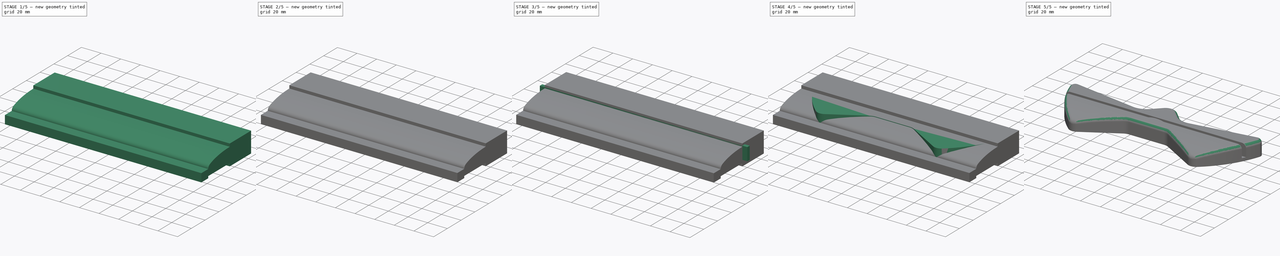
[diagram: build sequence overview — one tinted view per stage of 5, left to right]
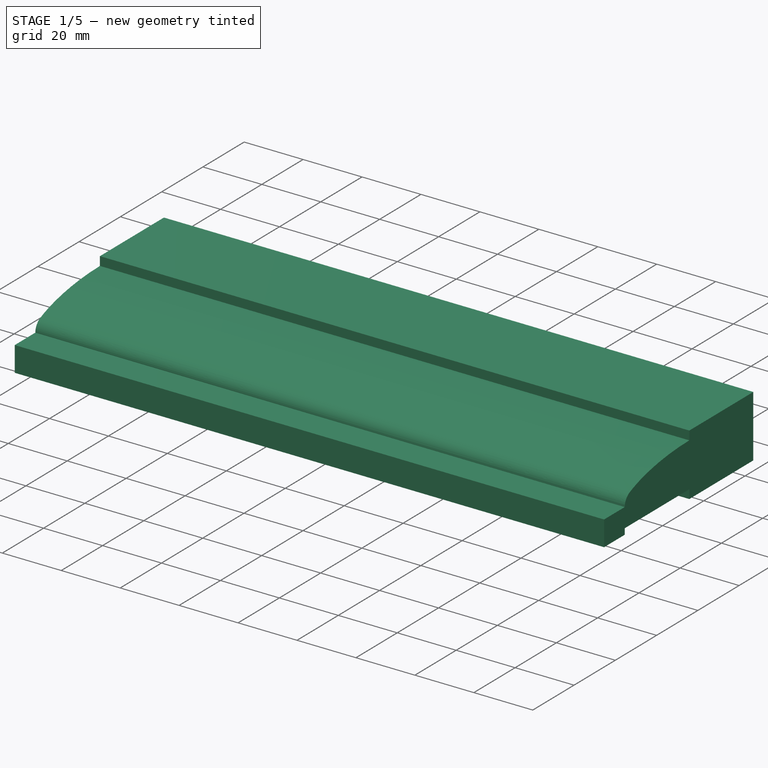
[diagram: stage 1 of 5 — iso view after this stage's code; geometry added in this stage tinted green]
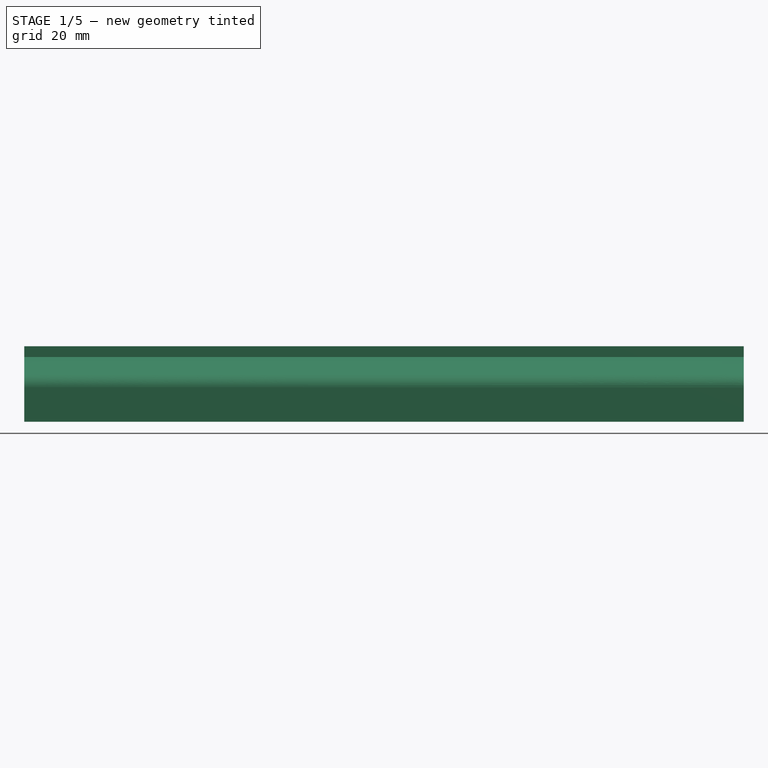
[diagram: stage 1 of 5 — front view after this stage's code; geometry added in this stage tinted green]
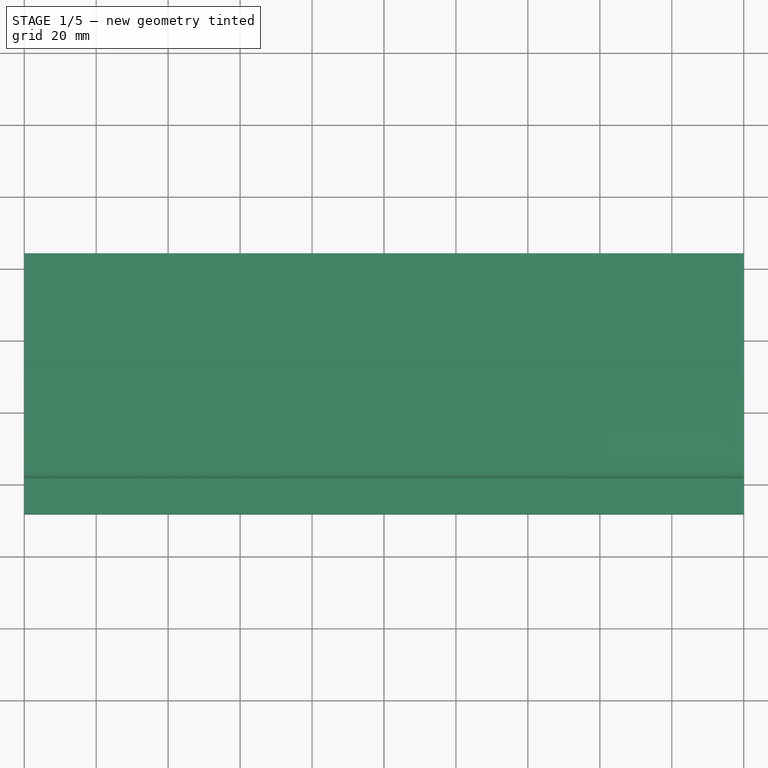
[diagram: stage 1 of 5 — top view after this stage's code; geometry added in this stage tinted green]
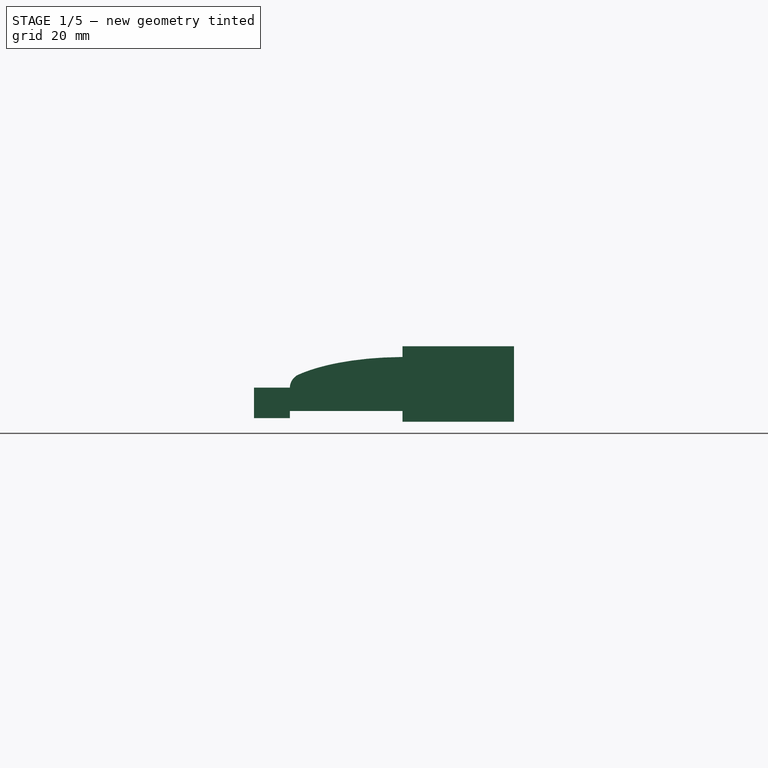
[diagram: stage 1 of 5 — right view after this stage's code; geometry added in this stage tinted green]
FCSTD DOCUMENT
Label: pattern-holder
objects: Sketcher::SketchObject×7, Part::Extrusion×6, Part::Cut×4, Part::MultiFuse×3, Part::Feature×2, PartDesign::Pad×2, Part::Box×2, Part::MultiCommon×1, Part::Fillet×1
note: 30 computed .brp shape members not serialized (recipe doc carries the construction recipe); baked Part::Feature solids carry a one-line shape summary decoded from their .brp

FEATURE [Part::Feature] Part__Feature_cs  label="Perfil curvo"
  Placement = pos=(-44,0,0) rot=(0,0,1;0rad)
  shape: bbox 1e-05 x 48.61 x 15 mm, 0 faces, 0 solids (baked)
FEATURE [Part::Extrusion] Extrude005
  Base = -> Part__Feature_cs
  Dir = (200,0,0)
  Placement = pos=(4,0,0) rot=(0,0,1;0rad)
  Solid = true
FEATURE [Part::Box] Box001  label="Cubo001"
  Height = 21
  Length = 200
  Placement = pos=(-100,-47,-3) rot=(0,0,1;0rad)
  Width = 31
FEATURE [Part::Box] Box002  label="Cubo002"
  Height = 8.5
  Length = 200
  Placement = pos=(-100,-88.3,-2) rot=(0,0,1;0rad)
  Width = 10
FEATURE [Part::MultiFuse] Fusion002  label="Para curvar la pieza"
  Shapes = -> [Extrude005,Box001,Box002]
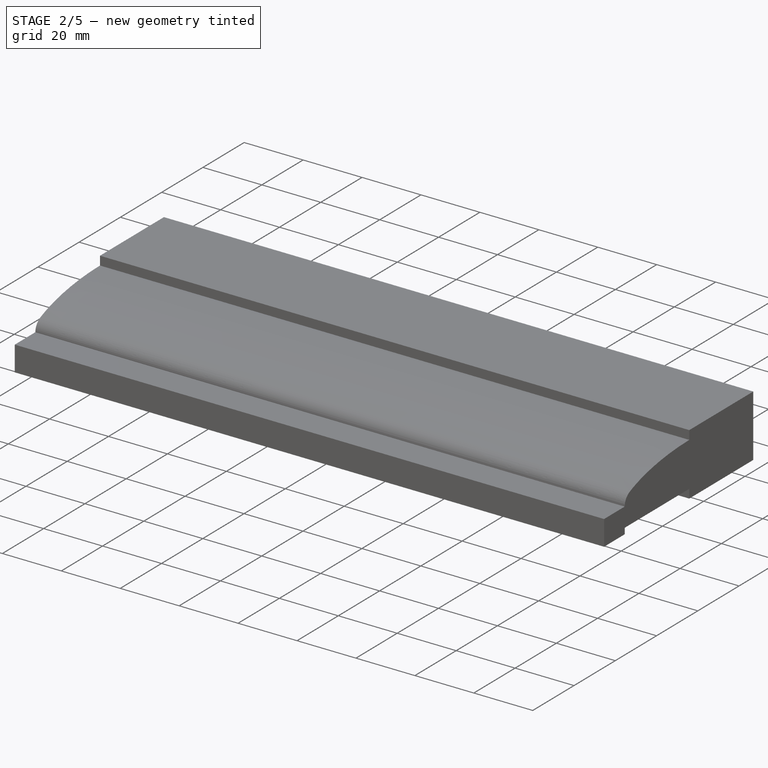
[diagram: stage 2 of 5 — iso view after this stage's code; geometry added in this stage tinted green]
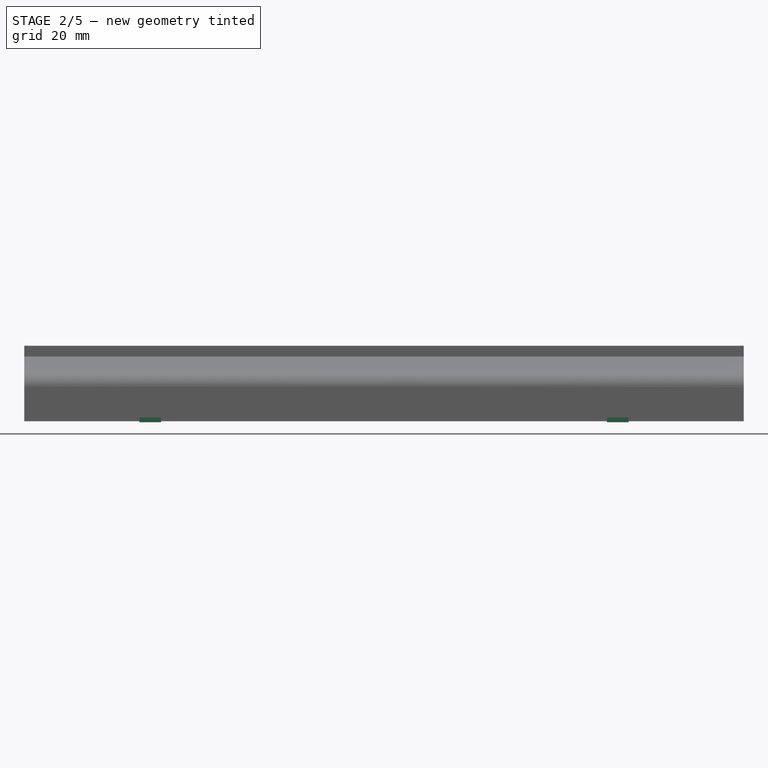
[diagram: stage 2 of 5 — front view after this stage's code; geometry added in this stage tinted green]
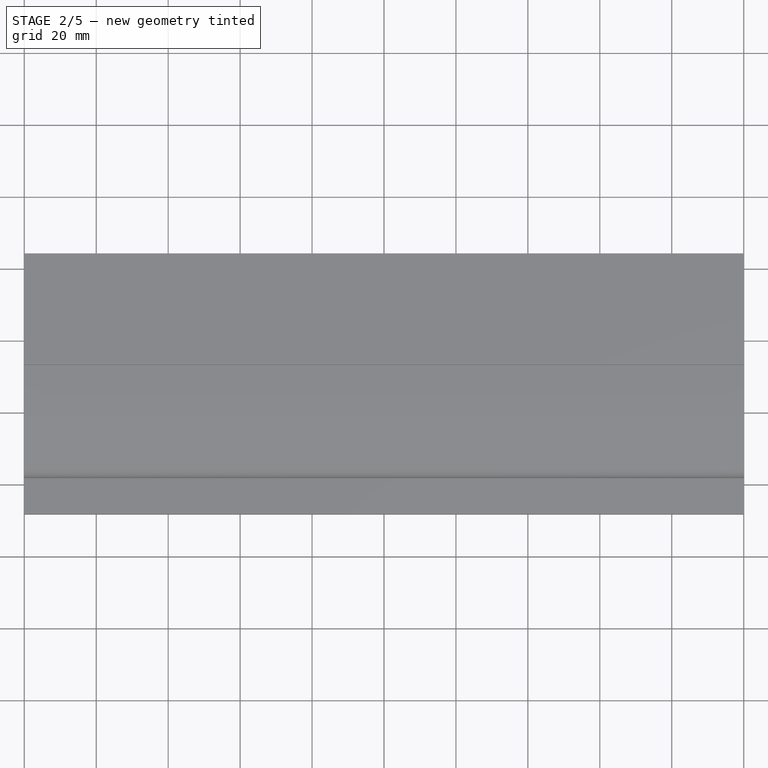
[diagram: stage 2 of 5 — top view after this stage's code; geometry added in this stage tinted green]
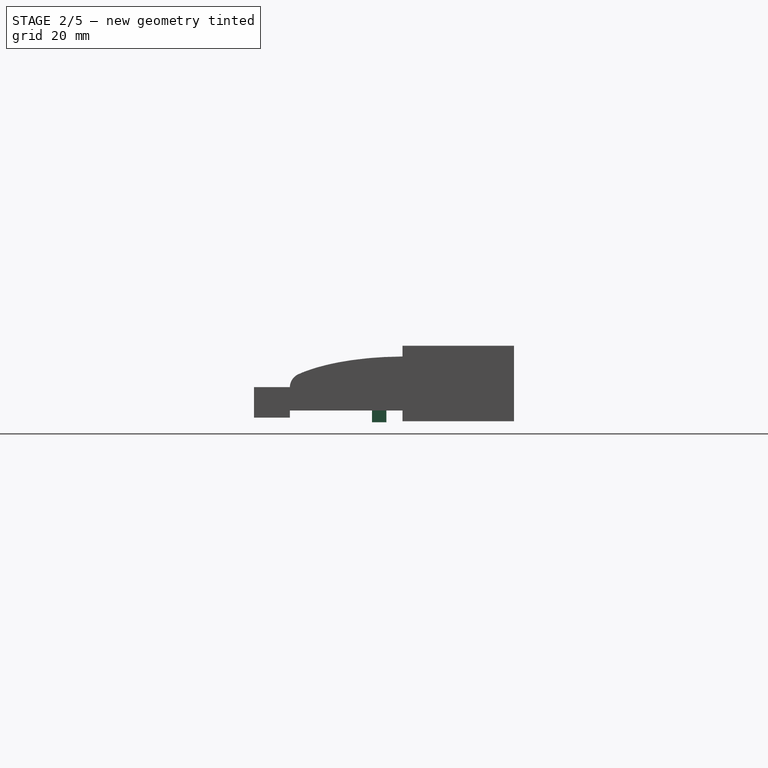
[diagram: stage 2 of 5 — right view after this stage's code; geometry added in this stage tinted green]
FEATURE [Sketcher::SketchObject] Sketch003  label="Sketch M3"
  Placement = pos=(65,-55.5,11.46) rot=(-1,0,0;1.5708rad)
  sketch-geometry (6):
    g0: LineSegment StartX=-3 StartY=14.7321 StartZ=0 EndX=-3 EndY=1.73205 EndZ=0
    g1: LineSegment StartX=-3 StartY=1.73205 StartZ=0 EndX=0 EndY=0 EndZ=0
    g2: LineSegment StartX=0 StartY=0 StartZ=0 EndX=3 EndY=1.73205 EndZ=0
    g3: LineSegment StartX=3 StartY=1.73205 StartZ=0 EndX=3 EndY=14.7321 EndZ=0
    g4: LineSegment StartX=3 StartY=14.7321 StartZ=0 EndX=-3 EndY=14.7321 EndZ=0
    g5: LineSegment [constr] StartX=0 StartY=0 StartZ=0 EndX=0 EndY=14.7321 EndZ=0
  constraints (17):
    c: Vertical(g0)
    c: Coincident(g0,g1)
    c: Coincident(g1,g2)
    c: Coincident(g2,g3)
    c: Vertical(g3)
    c: Coincident(g3,g4)
    c: Coincident(g4,g0)
    c: Horizontal(g4)
    c: Coincident(g5,g1)
    c: PointOnObject(g5,g4)
    c: Vertical(g5)
    c: Symmetric(g0,g2,g5)
    c: Angle(g2,g1) = 2.0944
    c: DistanceY(g3) = 13
    c: DistanceX(g4) = -6
    c: PointOnObject(g1,g-2)
    c: PointOnObject(g1,g-1)
FEATURE [PartDesign::Pad] Pad  label="Alojamiento tuerca M3"
  Length = 4
  Length2 = 100
  Placement = pos=(65,-55.5,11.46) rot=(-1,0,0;1.5708rad)
  Sketch = -> Sketch003
  Type = 0
FEATURE [Sketcher::SketchObject] Sketch005  label="Sketch M3_2"
  Placement = pos=(-65,-55.5,11.46) rot=(-1,0,0;1.5708rad)
  sketch-geometry (6):
    g0: LineSegment StartX=-3 StartY=14.7321 StartZ=0 EndX=-3 EndY=1.73205 EndZ=0
    g1: LineSegment StartX=-3 StartY=1.73205 StartZ=0 EndX=0 EndY=0 EndZ=0
    g2: LineSegment StartX=0 StartY=0 StartZ=0 EndX=3 EndY=1.73205 EndZ=0
    g3: LineSegment StartX=3 StartY=1.73205 StartZ=0 EndX=3 EndY=14.7321 EndZ=0
    g4: LineSegment StartX=3 StartY=14.7321 StartZ=0 EndX=-3 EndY=14.7321 EndZ=0
    g5: LineSegment [constr] StartX=0 StartY=0 StartZ=0 EndX=0 EndY=14.7321 EndZ=0
  constraints (17):
    c: Vertical(g0)
    c: Coincident(g0,g1)
    c: Coincident(g1,g2)
    c: Coincident(g2,g3)
    c: Vertical(g3)
    c: Coincident(g3,g4)
    c: Coincident(g4,g0)
    c: Horizontal(g4)
    c: Coincident(g5,g1)
    c: PointOnObject(g5,g4)
    c: Vertical(g5)
    c: Symmetric(g0,g2,g5)
    c: Angle(g2,g1) = 2.0944
    c: DistanceY(g3) = 13
    c: DistanceX(g4) = -6
    c: PointOnObject(g1,g-2)
    c: PointOnObject(g1,g-1)
FEATURE [PartDesign::Pad] Pad001  label="Alojamiento tuerca M3_2"
  Length = 4
  Length2 = 100
  Placement = pos=(-65,-55.5,11.46) rot=(-1,0,0;1.5708rad)
  Sketch = -> Sketch005
  Type = 0
FEATURE [Part::MultiFuse] Fusion  label="Alojamiento tuercas M3"
  Shapes = -> [Pad001,Pad]
FEATURE [Sketcher::SketchObject] Sketch006  label="Sketch arco"
  ExternalGeometry = -> [Part__Feature]
  Placement = pos=(0,-43.5,0) rot=(1,0,0;1.5708rad)
  Support = -> Part__Feature [Face3]
  sketch-geometry (2):
    g0: ArcOfCircle CenterX=0 CenterY=-16 CenterZ=0 NormalX=0 NormalY=0 NormalZ=1 Radius=30 StartAngle=0.685853 EndAngle=2.45574
    g1: LineSegment StartX=-23.2164 StartY=3 StartZ=0 EndX=23.2164 EndY=3 EndZ=0
  constraints (5):
    c: Coincident(g-3,g0)
    c: Coincident(g0,g-3)
    c: Coincident(g0,g-3)
    c: Coincident(g1,g0)
    c: Coincident(g1,g0)
FEATURE [Part::Extrusion] Extrude004  label="Arco central"
  Base = -> Sketch006
  Dir = (0,-3.5,0)
  Solid = true
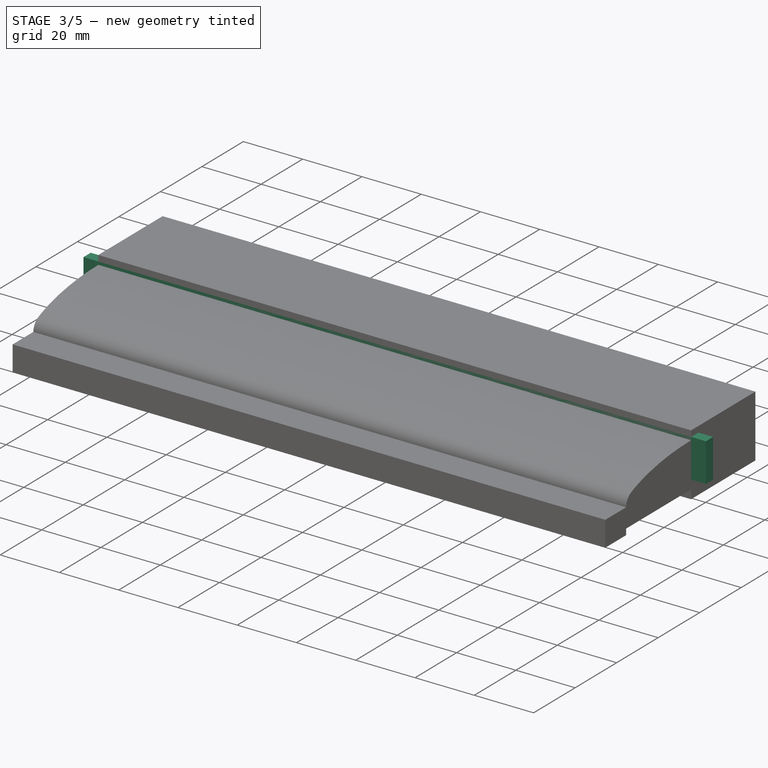
[diagram: stage 3 of 5 — iso view after this stage's code; geometry added in this stage tinted green]
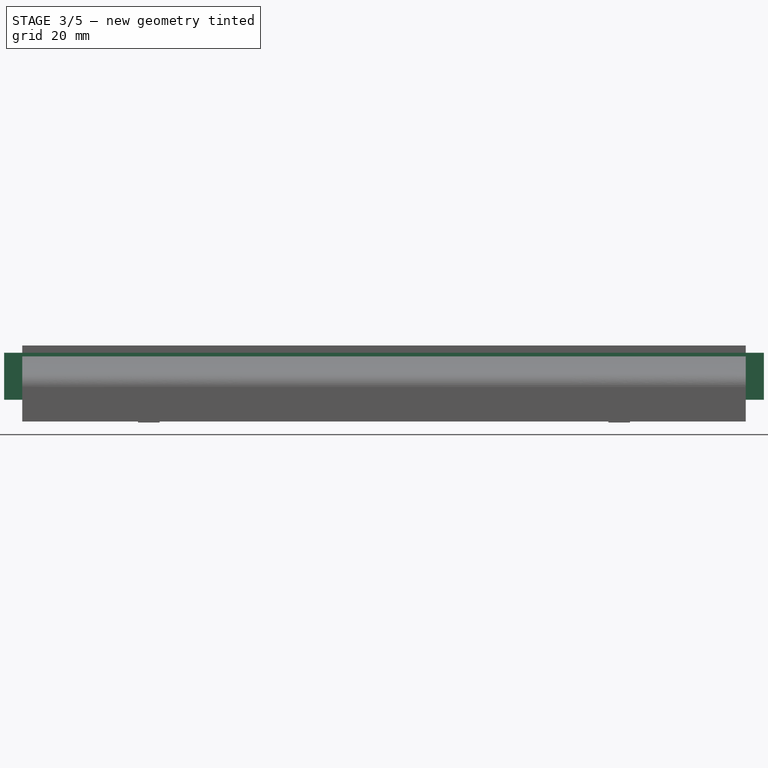
[diagram: stage 3 of 5 — front view after this stage's code; geometry added in this stage tinted green]
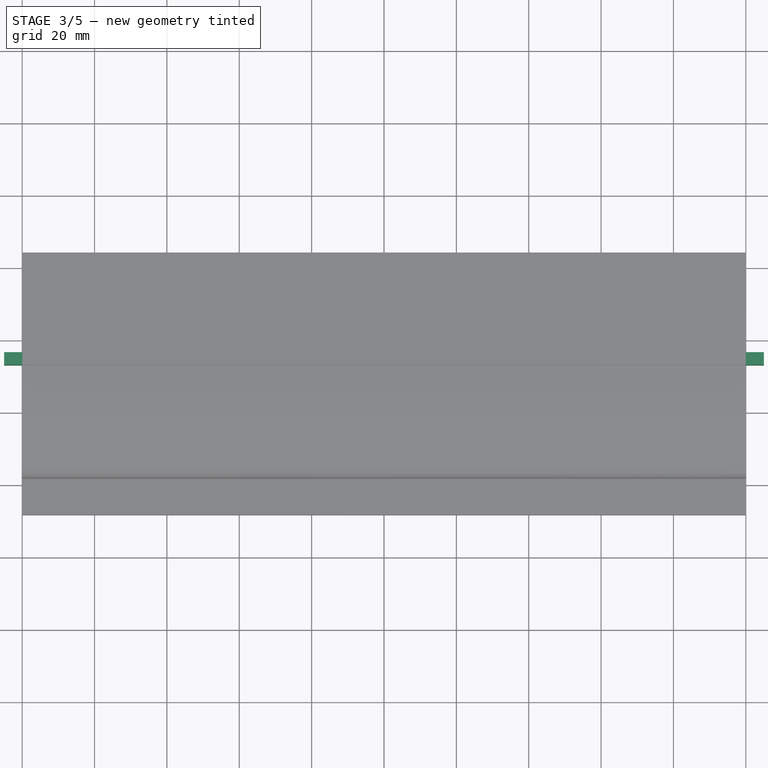
[diagram: stage 3 of 5 — top view after this stage's code; geometry added in this stage tinted green]
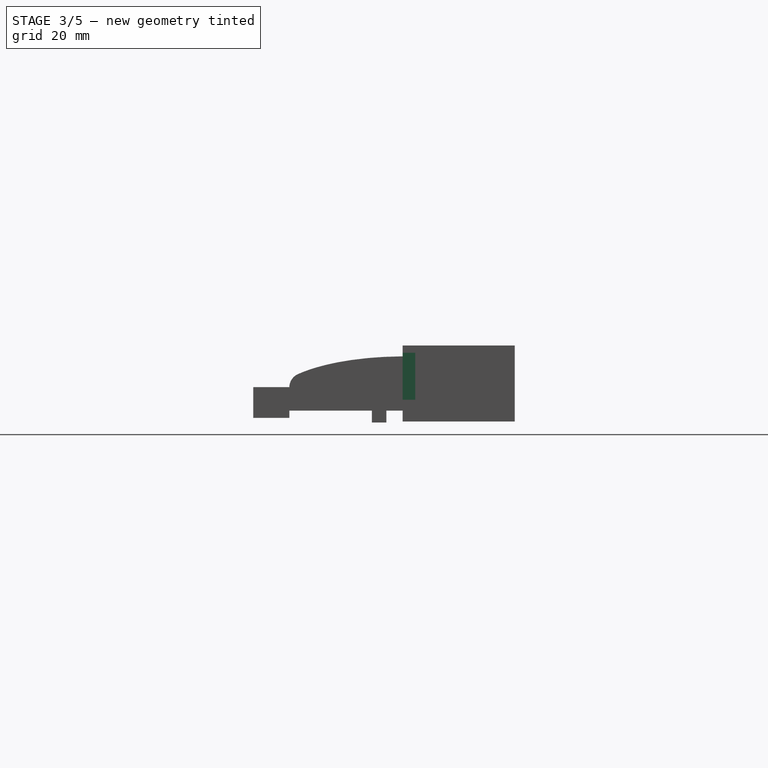
[diagram: stage 3 of 5 — right view after this stage's code; geometry added in this stage tinted green]
FEATURE [Sketcher::SketchObject] Sketch001  label="Sketch Ranura superior"
  ExternalGeometry = -> [Part__Feature]
  Placement = pos=(0,0,15) rot=(0,0,1;0rad)
  Support = -> Part__Feature [Face32]
  sketch-geometry (4):
    g0: LineSegment StartX=-105 StartY=-47 StartZ=0 EndX=105 EndY=-47 EndZ=0
    g1: LineSegment StartX=-105 StartY=-43.5 StartZ=0 EndX=105 EndY=-43.5 EndZ=0
    g2: LineSegment StartX=105 StartY=-43.5 StartZ=0 EndX=105 EndY=-47 EndZ=0
    g3: LineSegment StartX=-105 StartY=-47 StartZ=0 EndX=-105 EndY=-43.5 EndZ=0
  constraints (12):
    c: PointOnObject(g0,g-4)
    c: Horizontal(g0)
    c: PointOnObject(g1,g-3)
    c: Horizontal(g1)
    c: Vertical(g2)
    c: Coincident(g0,g2)
    c: Coincident(g1,g2)
    c: Coincident(g0,g3)
    c: Coincident(g3,g1)
    c: Vertical(g3)
    c: DistanceX(g0) = 210
    c: Symmetric(g0,g0,g-2)
FEATURE [Part::Extrusion] Extrude001  label="Ranura superior"
  Base = -> Sketch001
  Dir = (0,0,-13)
  Placement = pos=(0,0,1) rot=(0,0,1;0rad)
  Solid = true
FEATURE [Sketcher::SketchObject] Sketch002  label="Sketch 6mm"
  ExternalGeometry = -> [Part__Feature]
  Placement = pos=(0,-43.5,0) rot=(1,0,0;1.5708rad)
  Support = -> Part__Feature [Face3]
  sketch-geometry (2):
    g0: Circle CenterX=-65 CenterY=7.99996 CenterZ=0 NormalX=0 NormalY=0 NormalZ=1 Radius=3
    g1: Circle CenterX=65 CenterY=8 CenterZ=0 NormalX=0 NormalY=0 NormalZ=1 Radius=3
  constraints (4):
    c: Radius(g0) = 3
    c: Radius(g1) = 3
    c: DistanceX(g-3,g1) = 130
    c: Symmetric(g-3,g1,g-2)
FEATURE [Part::Extrusion] Extrude002  label="Taladro 6mm"
  Base = -> Sketch002
  Dir = (0,23,0)
  Solid = true
FEATURE [Sketcher::SketchObject] Sketch004  label="Sketch 3mm"
  ExternalGeometry = -> [Part__Feature]
  Placement = pos=(0,-47,0) rot=(0,0.707107,0.707107;3.14159rad)
  Support = -> Part__Feature [Face9]
  sketch-geometry (2):
    g0: Circle CenterX=64.9992 CenterY=8 CenterZ=0 NormalX=0 NormalY=0 NormalZ=1 Radius=1.75
    g1: Circle CenterX=-64.9992 CenterY=8 CenterZ=0 NormalX=0 NormalY=0 NormalZ=1 Radius=1.75
  constraints (4):
    c: Radius(g1) = 1.75
    c: Radius(g0) = 1.75
    c: DistanceY(g0) = 8
    c: Symmetric(g1,g0,g-2)
FEATURE [Part::Extrusion] Extrude003  label="Taladro 3mm"
  Base = -> Sketch004
  Dir = (0,-26.5,0)
  Solid = true
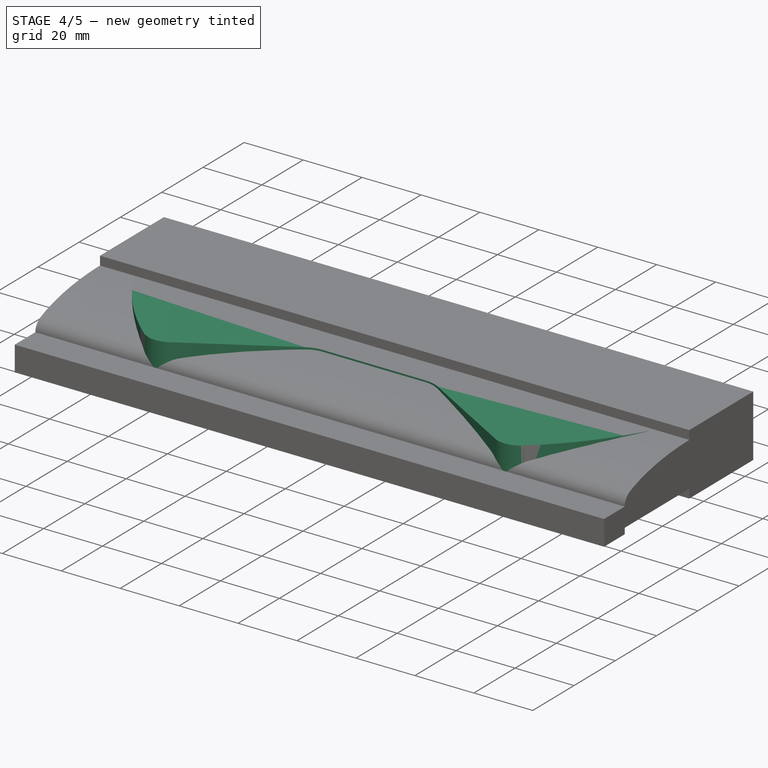
[diagram: stage 4 of 5 — iso view after this stage's code; geometry added in this stage tinted green]
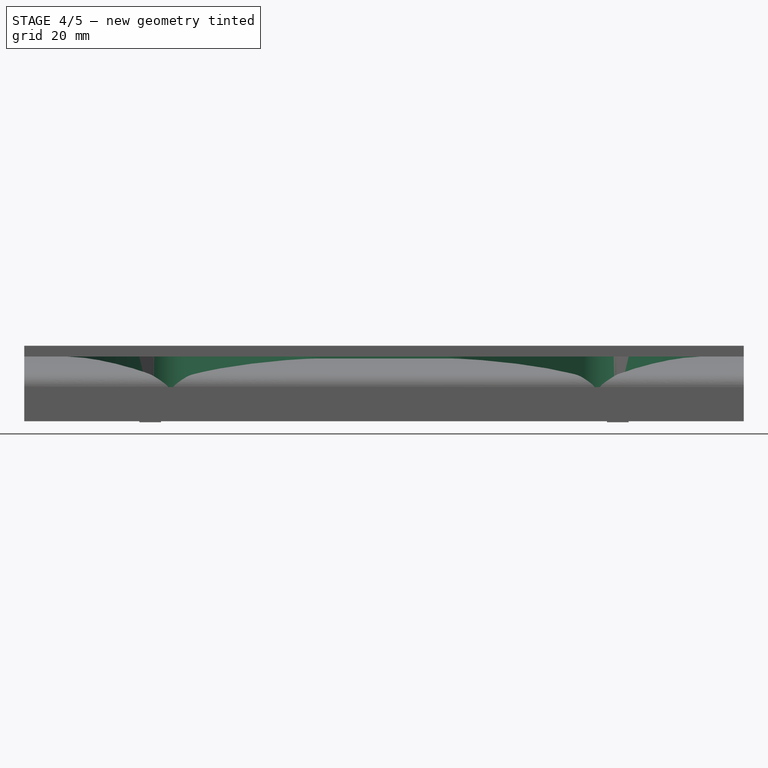
[diagram: stage 4 of 5 — front view after this stage's code; geometry added in this stage tinted green]
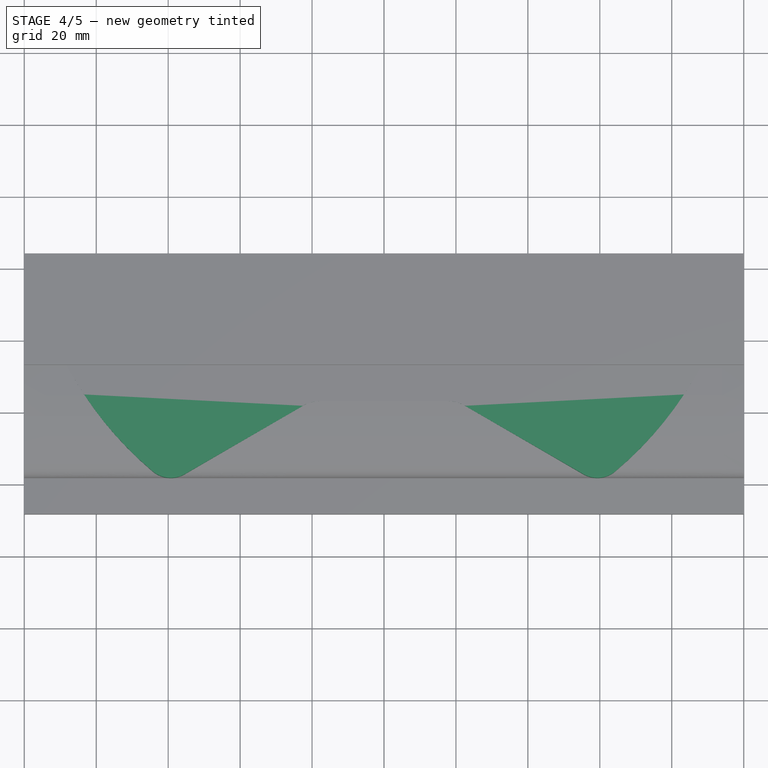
[diagram: stage 4 of 5 — top view after this stage's code; geometry added in this stage tinted green]
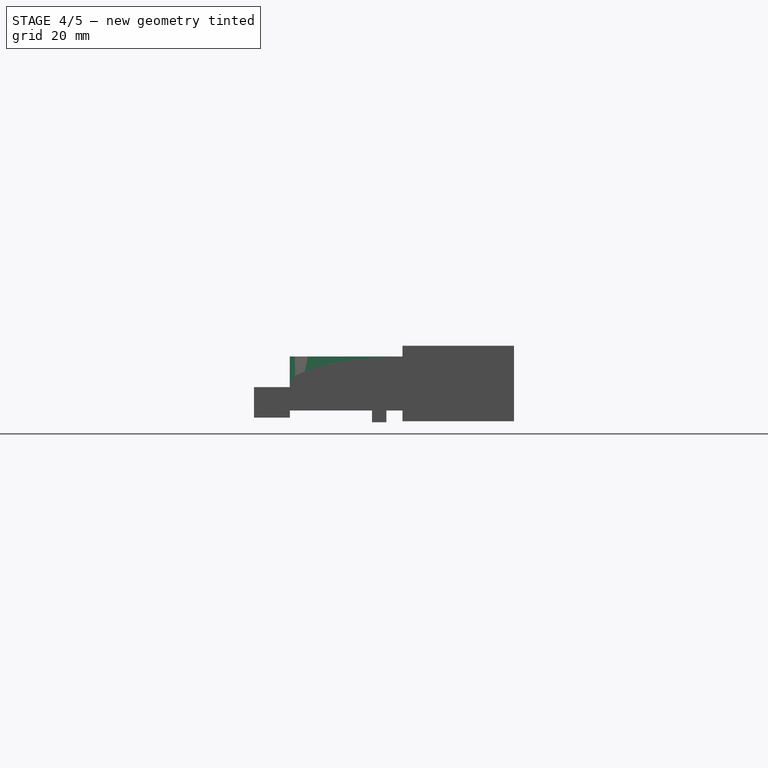
[diagram: stage 4 of 5 — right view after this stage's code; geometry added in this stage tinted green]
FEATURE [Part::Feature] Part__Feature  label="Pieza original"
  shape: bbox 190.5 x 64.02 x 15.56 mm, 68 faces (baked)
FEATURE [Sketcher::SketchObject] Sketch  label="Sketch principal"
  ExternalGeometry = -> [Part__Feature]
  Placement = pos=(0,0,0) rot=(1,0,0;3.14159rad)
  Support = -> Part__Feature [Face68]
  sketch-geometry (18):
    g0: ArcOfCircle CenterX=-25.3553 CenterY=20 CenterZ=0 NormalX=0 NormalY=0 NormalZ=1 Radius=15 StartAngle=0.785398 EndAngle=1.7277
    g1: ArcOfCircle CenterX=0 CenterY=30 CenterZ=0 NormalX=0 NormalY=0 NormalZ=1 Radius=10 StartAngle=3.92699 EndAngle=5.49779
    g2: ArcOfCircle CenterX=25.3553 CenterY=20 CenterZ=0 NormalX=0 NormalY=0 NormalZ=1 Radius=15 StartAngle=1.4139 EndAngle=2.35619
    g3: ArcOfCircle CenterX=90.1388 CenterY=30 CenterZ=0 NormalX=0 NormalY=0 NormalZ=1 Radius=5 StartAngle=4.55549 EndAngle=6.60447
    g4: ArcOfCircle CenterX=0 CenterY=0 CenterZ=0 NormalX=0 NormalY=0 NormalZ=1 Radius=100 StartAngle=0.321289 EndAngle=0.870443
    g5: ArcOfCircle CenterX=59.2929 CenterY=70.3445 CenterZ=0 NormalX=0 NormalY=0 NormalZ=1 Radius=8 StartAngle=0.870443 EndAngle=2.0944
    g6: ArcOfCircle CenterX=17.5 CenterY=67 CenterZ=0 NormalX=0 NormalY=0 NormalZ=1 Radius=10 StartAngle=4.71239 EndAngle=5.23599
    g7: ArcOfCircle CenterX=-17.5 CenterY=67 CenterZ=0 NormalX=0 NormalY=0 NormalZ=1 Radius=10 StartAngle=4.18879 EndAngle=4.71239
    g8: ArcOfCircle CenterX=-59.2929 CenterY=70.3445 CenterZ=0 NormalX=0 NormalY=0 NormalZ=1 Radius=8 StartAngle=1.0472 EndAngle=2.27115
    g9: ArcOfCircle CenterX=0 CenterY=0 CenterZ=0 NormalX=0 NormalY=0 NormalZ=1 Radius=100 StartAngle=2.27115 EndAngle=2.8203
    g10: ArcOfCircle CenterX=-90.1388 CenterY=30 CenterZ=0 NormalX=0 NormalY=0 NormalZ=1 Radius=5 StartAngle=2.8203 EndAngle=4.86929
    g11: LineSegment StartX=-89.3575 StartY=25.0614 StartZ=0 EndX=-27.6992 EndY=34.8157 EndZ=0
    g12: LineSegment StartX=-14.7487 StartY=30.6066 StartZ=0 EndX=-7.07107 EndY=22.9289 EndZ=0
    g13: LineSegment StartX=7.07107 StartY=22.9289 StartZ=0 EndX=14.7487 EndY=30.6066 EndZ=0
    g14: LineSegment StartX=27.6992 StartY=34.8157 StartZ=0 EndX=89.3575 EndY=25.0614 EndZ=0
    g15: LineSegment StartX=22.5 StartY=58.3397 StartZ=0 EndX=55.2929 EndY=77.2727 EndZ=0
    g16: LineSegment StartX=17.5 StartY=57 StartZ=0 EndX=-17.5 EndY=57 EndZ=0
    g17: LineSegment StartX=-22.5 StartY=58.3397 StartZ=0 EndX=-55.2929 EndY=77.2727 EndZ=0
  constraints (20):
    c: Coincident(g4,g3)
    c: Coincident(g4,g-1)
    c: Coincident(g5,g4)
    c: Coincident(g9,g8)
    c: Coincident(g-1,g9)
    c: Coincident(g10,g9)
    c: Coincident(g17,g8)
    c: Coincident(g17,g7)
    c: Coincident(g16,g7)
    c: Coincident(g16,g6)
    c: Coincident(g15,g6)
    c: Coincident(g15,g5)
    c: Coincident(g14,g3)
    c: Coincident(g14,g2)
    c: Coincident(g13,g2)
    c: Coincident(g13,g1)
    c: Coincident(g12,g1)
    c: Coincident(g12,g0)
    c: Coincident(g11,g0)
    c: Coincident(g11,g10)
FEATURE [Part::Extrusion] Extrude  label="Bloque principal"
  Base = -> Sketch
  Dir = (0,0,15)
  Solid = true
FEATURE [Part::Cut] Cut  label="Corte de ranura"
  Base = -> Extrude
  Tool = -> Extrude001
FEATURE [Part::Cut] Cut001  label="Corte taladro 6mm"
  Base = -> Cut
  Tool = -> Extrude002
FEATURE [Part::Cut] Cut002  label="Corte taladro 3mm"
  Base = -> Cut001
  Tool = -> Extrude003
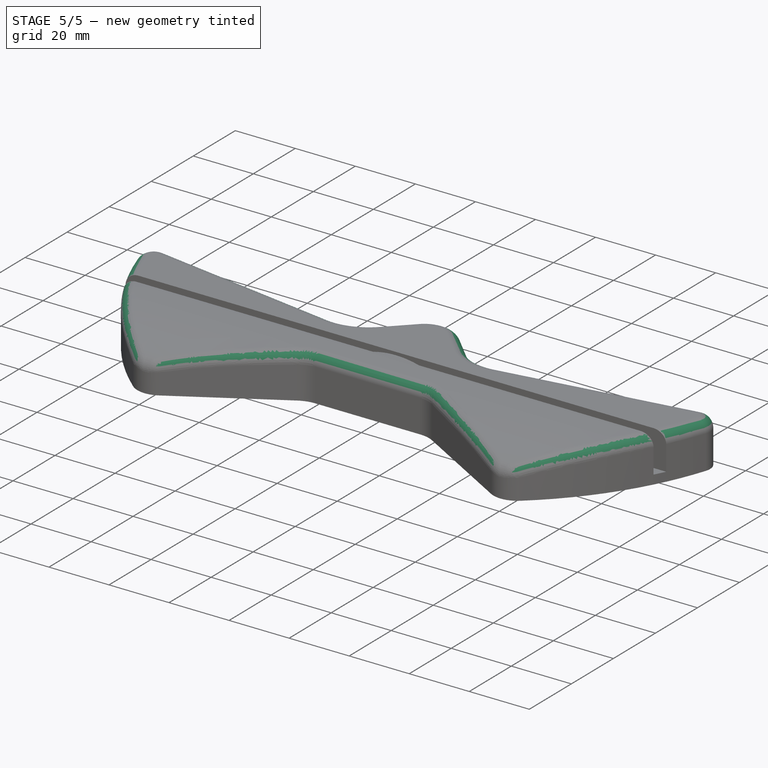
[diagram: stage 5 of 5 — iso view after this stage's code; geometry added in this stage tinted green]
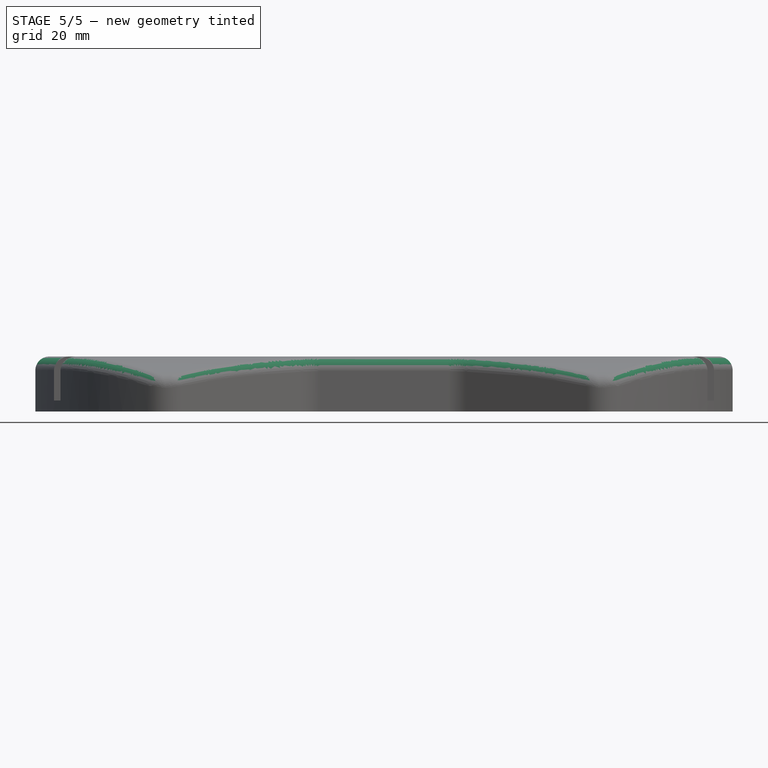
[diagram: stage 5 of 5 — front view after this stage's code; geometry added in this stage tinted green]
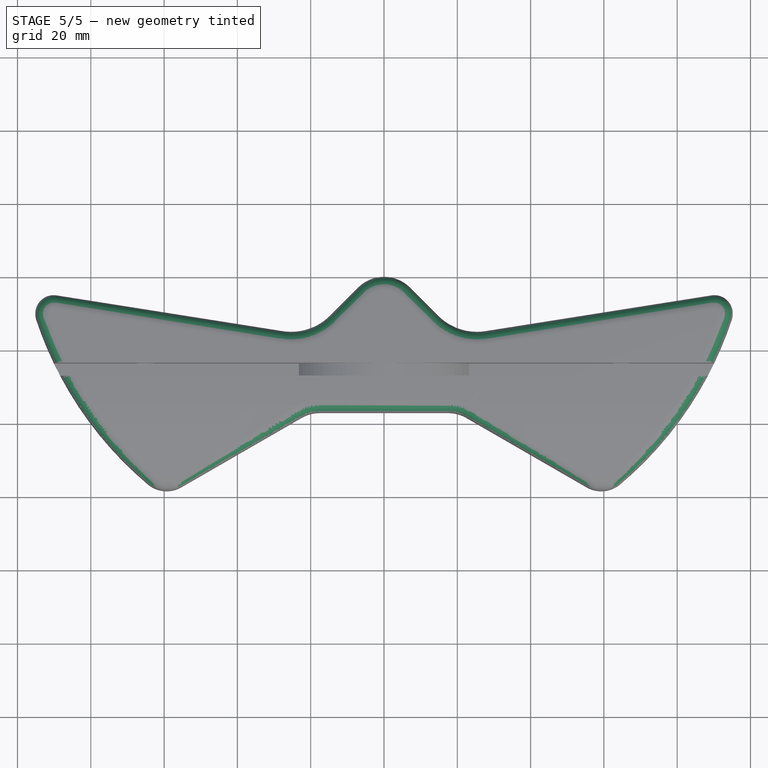
[diagram: stage 5 of 5 — top view after this stage's code; geometry added in this stage tinted green]
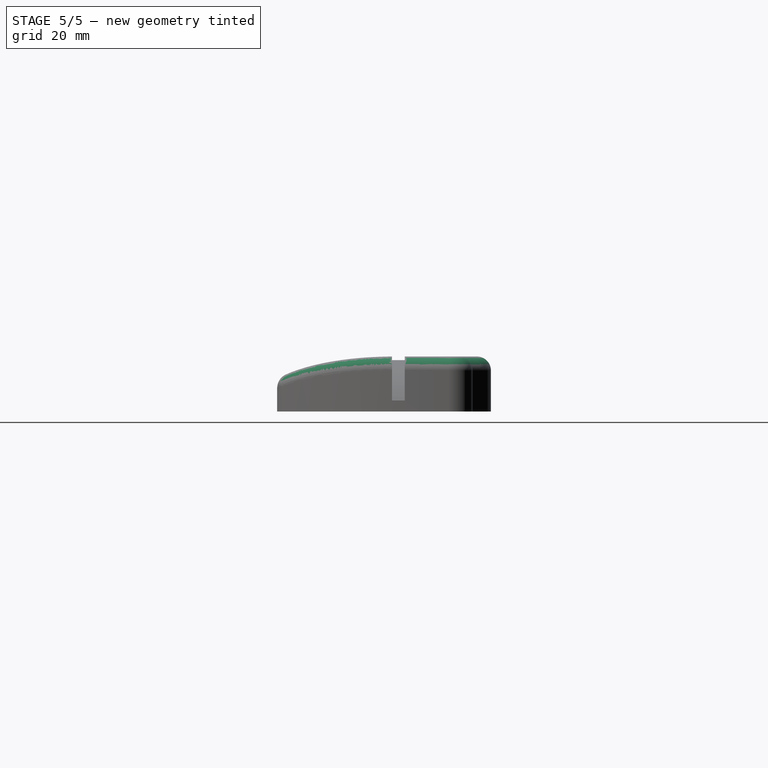
[diagram: stage 5 of 5 — right view after this stage's code; geometry added in this stage tinted green]
FEATURE [Part::Cut] Cut003  label="Corte Alojamiento M3"
  Base = -> Cut002
  Tool = -> Fusion
FEATURE [Part::MultiFuse] Fusion001  label="Fusion con arco central"
  Shapes = -> [Cut003,Extrude004]
FEATURE [Part::MultiCommon] Common  label="Interseccion para suavizar"
  Shapes = -> [Fusion002,Fusion001]
FEATURE [Part::Fillet] Fillet  label="Redondeo de bordes"
  Base = -> Common
  Edges = 4 edges r=3.8: [Edge52,Edge56,Edge58,Edge65]
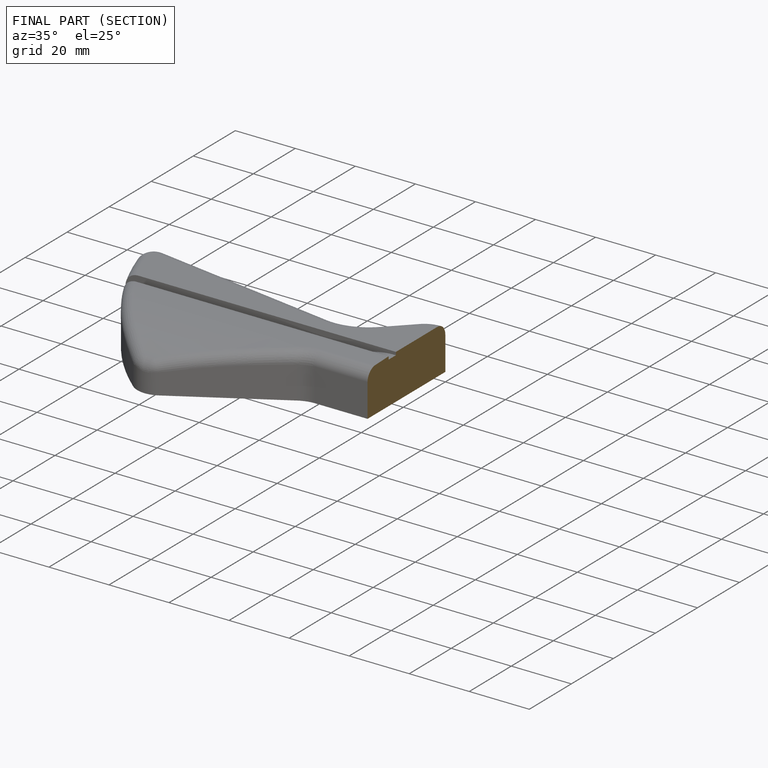
[diagram: finished part — half-section view (interior)]
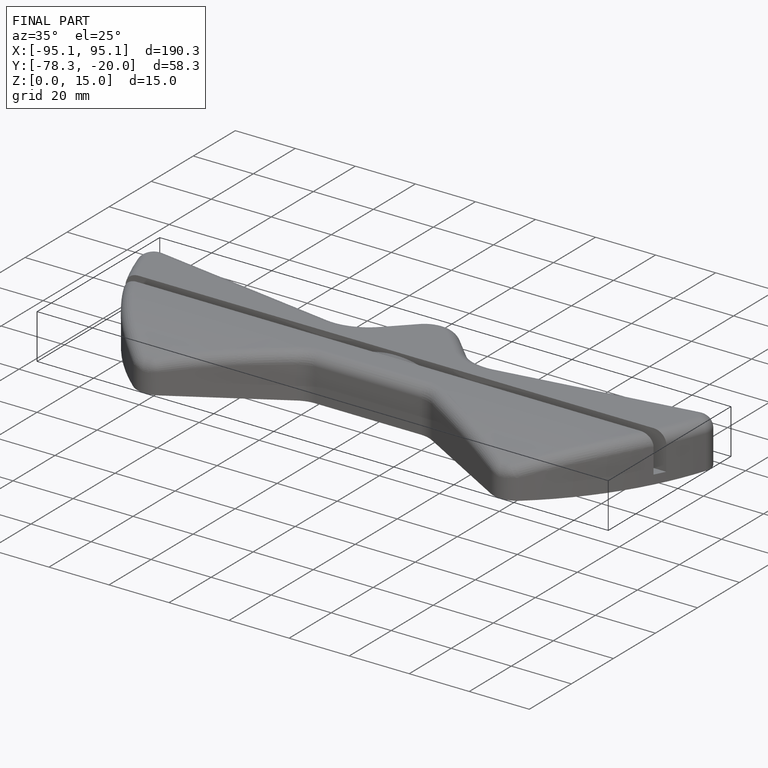
[diagram: finished part — iso view with bounding-box wireframe]
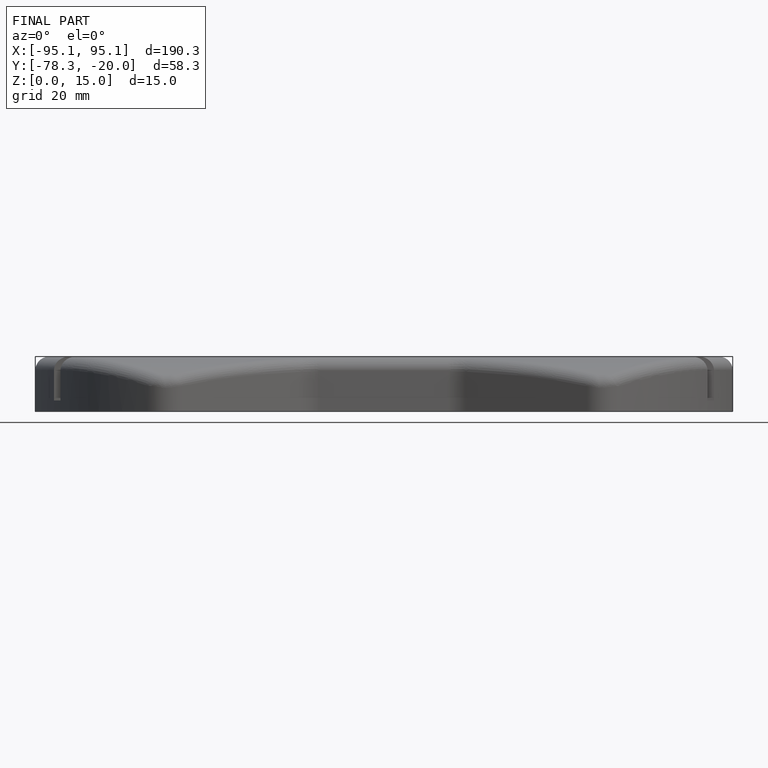
[diagram: finished part — front view with bounding-box wireframe]
